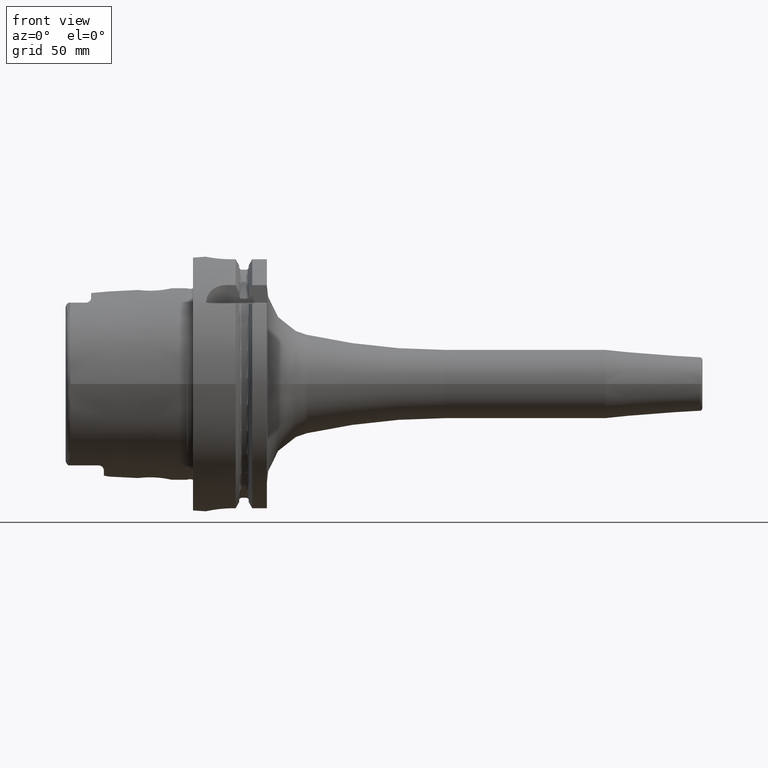
[diagram: clean part render]
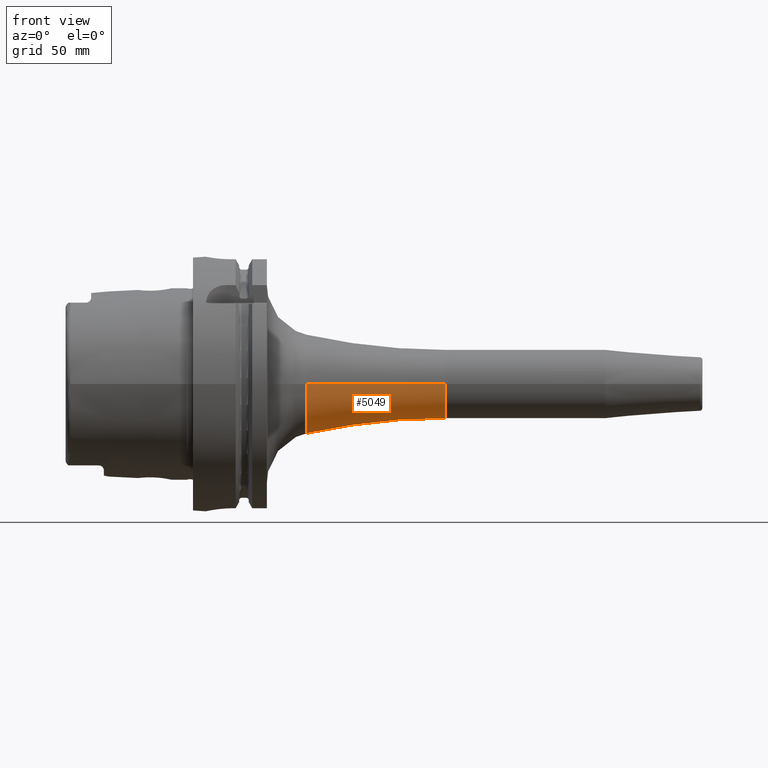
[diagram: same view with one face highlighted and labeled with its STEP entity id]
A machine part, front view. The second image highlights one B-rep face of the part: STEP entity #5049.
In plain terms, the highlighted toroidal blend (fillet) surface has major radius 263.5 mm and minor (blend) radius 250 mm.
Its self-contained STEP definition (entity closure, byte-faithful):
#1825=CARTESIAN_POINT('',(4.465217391304E1,0.E0,0.E0));
#1826=DIRECTION('',(1.E0,0.E0,0.E0));
#1827=DIRECTION('',(0.E0,-1.E0,0.E0));
#1828=AXIS2_PLACEMENT_3D('',#1825,#1826,#1827);
#1830=CARTESIAN_POINT('',(9.9E1,-2.635E2,-6.453888631507E-14));
#1831=DIRECTION('',(0.E0,0.E0,1.E0));
#1832=DIRECTION('',(0.E0,1.E0,0.E0));
#1833=AXIS2_PLACEMENT_3D('',#1830,#1831,#1832);
#1835=CARTESIAN_POINT('',(9.9E1,2.635E2,3.226944315753E-14));
#1836=DIRECTION('',(0.E0,0.E0,-1.E0));
#1837=DIRECTION('',(0.E0,-1.E0,0.E0));
#1838=AXIS2_PLACEMENT_3D('',#1835,#1836,#1837);
#1840=CARTESIAN_POINT('',(9.9E1,0.E0,0.E0));
#1841=DIRECTION('',(1.E0,0.E0,0.E0));
#1842=DIRECTION('',(0.E0,-1.E0,0.E0));
#1843=AXIS2_PLACEMENT_3D('',#1840,#1841,#1842);
#3169=CARTESIAN_POINT('',(4.465217391304E1,-1.947886607996E1,0.E0));
#3170=CARTESIAN_POINT('',(4.465217391304E1,1.947886607996E1,0.E0));
#3171=VERTEX_POINT('',#3169);
#3172=VERTEX_POINT('',#3170);
#3173=CARTESIAN_POINT('',(9.9E1,1.35E1,0.E0));
#3174=VERTEX_POINT('',#3173);
#3175=CARTESIAN_POINT('',(9.9E1,-1.35E1,0.E0));
#3176=VERTEX_POINT('',#3175);
#5037=CARTESIAN_POINT('',(9.9E1,0.E0,0.E0));
#5038=DIRECTION('',(1.E0,0.E0,0.E0));
#5039=DIRECTION('',(0.E0,-1.E0,0.E0));
#5040=AXIS2_PLACEMENT_3D('',#5037,#5038,#5039);
#5041=TOROIDAL_SURFACE('',#5040,2.635E2,2.5E2);
#5042=ORIENTED_EDGE('',*,*,#5002,.F.);
#5043=ORIENTED_EDGE('',*,*,#5032,.F.);
#5045=ORIENTED_EDGE('',*,*,#5044,.T.);
#5046=ORIENTED_EDGE('',*,*,#5028,.T.);
#5047=EDGE_LOOP('',(#5042,#5043,#5045,#5046));
#5048=FACE_OUTER_BOUND('',#5047,.F.);
#5049=ADVANCED_FACE('',(#5048),#5041,.F.);
#1829=CIRCLE('',#1828,1.947886607996E1);
#1834=CIRCLE('',#1833,2.5E2);
#1839=CIRCLE('',#1838,2.5E2);
#1844=CIRCLE('',#1843,1.35E1);
#5002=EDGE_CURVE('',#3171,#3172,#1829,.T.);
#5028=EDGE_CURVE('',#3174,#3172,#1839,.T.);
#5032=EDGE_CURVE('',#3176,#3171,#1834,.T.);
#5044=EDGE_CURVE('',#3176,#3174,#1844,.T.);